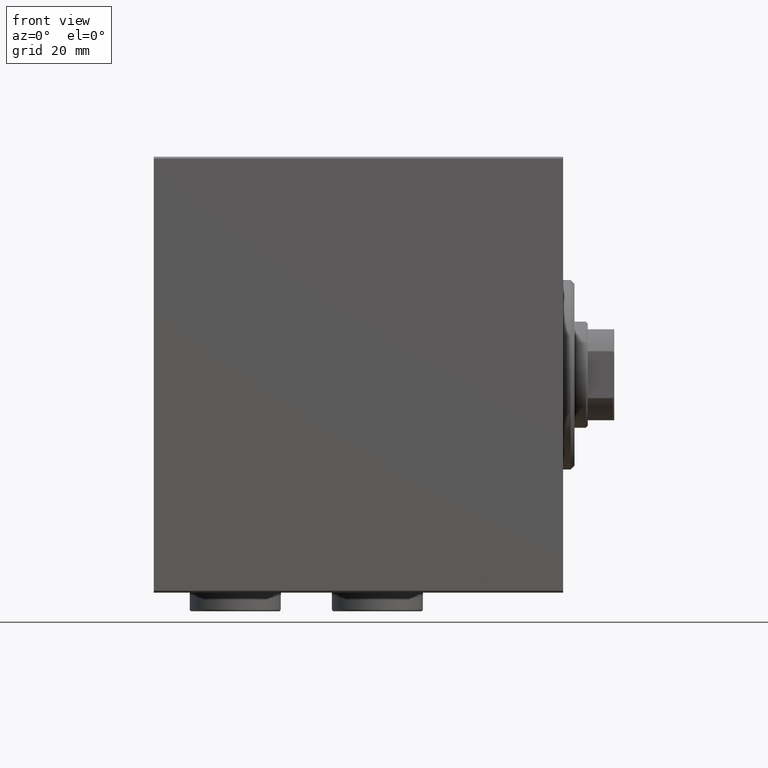
[diagram: clean part render]
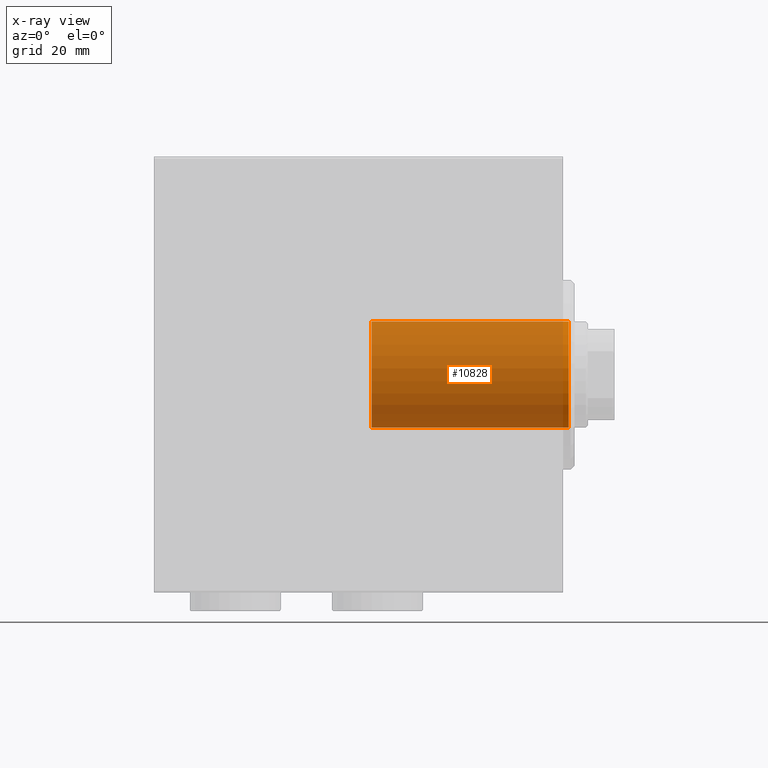
[diagram: x-ray — body ghosted, one internal face saturated and labeled with its STEP entity id]
A machine part, front view, then the same camera in x-ray: the body is ghosted and one INTERNAL B-rep face — a face not visible from any outside direction — is saturated and labeled: STEP entity #10828.
In plain terms, the highlighted cylindrical surface (partial cylindrical patch) has radius 14 mm, axis along (1, 0, 0).
Its self-contained STEP definition (entity closure, byte-faithful):
#134 = EDGE_CURVE ( 'NONE', #11475, #16722, #43574, .T. ) ;
#257 = AXIS2_PLACEMENT_3D ( 'NONE', #38422, #31408, #10353 ) ;
#436 = EDGE_CURVE ( 'NONE', #11475, #34388, #37607, .T. ) ;
#813 = EDGE_CURVE ( 'NONE', #34388, #33557, #39061, .T. ) ;
#3541 = DIRECTION ( 'NONE',  ( 1.000000000000000000, -0.000000000000000000, -0.000000000000000000 ) ) ;
#5313 = ORIENTED_EDGE ( 'NONE', *, *, #813, .F. ) ;
#5429 = CARTESIAN_POINT ( 'NONE',  ( 1.500000000000001332, 0.000000000000000000, 0.000000000000000000 ) ) ;
#6145 = ORIENTED_EDGE ( 'NONE', *, *, #436, .F. ) ;
#8035 = DIRECTION ( 'NONE',  ( 1.000000000000000000, -0.000000000000000000, -0.000000000000000000 ) ) ;
#10353 = DIRECTION ( 'NONE',  ( 0.000000000000000000, 0.000000000000000000, -1.000000000000000000 ) ) ;
#10556 = FACE_OUTER_BOUND ( 'NONE', #39093, .T. ) ;
#10828 = ADVANCED_FACE ( 'NONE', ( #10556 ), #24104, .F. ) ;
#11475 = VERTEX_POINT ( 'NONE', #12969 ) ;
#12969 = CARTESIAN_POINT ( 'NONE',  ( -50.49999999999999289, 1.714505518806294244E-15, 14.00000000000000000 ) ) ;
#13920 = AXIS2_PLACEMENT_3D ( 'NONE', #41674, #3541, #24800 ) ;
#14301 = ORIENTED_EDGE ( 'NONE', *, *, #40409, .T. ) ;
#15203 = VECTOR ( 'NONE', #8035, 1000.000000000000000 ) ;
#16722 = VERTEX_POINT ( 'NONE', #31501 ) ;
#19637 = AXIS2_PLACEMENT_3D ( 'NONE', #5429, #40292, #29993 ) ;
#19810 = CARTESIAN_POINT ( 'NONE',  ( 1.500000000000001332, 0.000000000000000000, -14.00000000000000000 ) ) ;
#20585 = CARTESIAN_POINT ( 'NONE',  ( -50.49999999999999289, 0.000000000000000000, -14.00000000000000000 ) ) ;
#24104 = CYLINDRICAL_SURFACE ( 'NONE', #13920, 14.00000000000000000 ) ;
#24800 = DIRECTION ( 'NONE',  ( 0.000000000000000000, 0.000000000000000000, -1.000000000000000000 ) ) ;
#27903 = VECTOR ( 'NONE', #28062, 1000.000000000000000 ) ;
#28062 = DIRECTION ( 'NONE',  ( 1.000000000000000000, -0.000000000000000000, -0.000000000000000000 ) ) ;
#29093 = CARTESIAN_POINT ( 'NONE',  ( -50.49999999999999289, 1.714505518806294244E-15, 14.00000000000000000 ) ) ;
#29993 = DIRECTION ( 'NONE',  ( 0.000000000000000000, 0.000000000000000000, -1.000000000000000000 ) ) ;
#31408 = DIRECTION ( 'NONE',  ( 1.000000000000000000, 0.000000000000000000, 0.000000000000000000 ) ) ;
#31501 = CARTESIAN_POINT ( 'NONE',  ( 1.500000000000001332, 1.714505518806294244E-15, 14.00000000000000000 ) ) ;
#33557 = VERTEX_POINT ( 'NONE', #19810 ) ;
#34388 = VERTEX_POINT ( 'NONE', #35038 ) ;
#35038 = CARTESIAN_POINT ( 'NONE',  ( -50.49999999999999289, 0.000000000000000000, -14.00000000000000000 ) ) ;
#37607 = CIRCLE ( 'NONE', #257, 14.00000000000000000 ) ;
#38422 = CARTESIAN_POINT ( 'NONE',  ( -50.49999999999999289, 0.000000000000000000, 0.000000000000000000 ) ) ;
#39061 = LINE ( 'NONE', #20585, #27903 ) ;
#39093 = EDGE_LOOP ( 'NONE', ( #6145, #40761, #14301, #5313 ) ) ;
#39822 = CIRCLE ( 'NONE', #19637, 14.00000000000000000 ) ;
#40292 = DIRECTION ( 'NONE',  ( 1.000000000000000000, 0.000000000000000000, 0.000000000000000000 ) ) ;
#40409 = EDGE_CURVE ( 'NONE', #16722, #33557, #39822, .T. ) ;
#40761 = ORIENTED_EDGE ( 'NONE', *, *, #134, .T. ) ;
#41674 = CARTESIAN_POINT ( 'NONE',  ( -50.49999999999999289, 0.000000000000000000, 0.000000000000000000 ) ) ;
#43574 = LINE ( 'NONE', #29093, #15203 ) ;